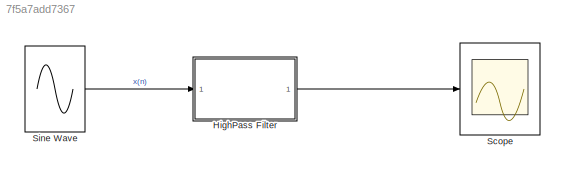
MODEL slx_7f5a7add7367
KIND model
CONFIG AbsTol = auto
CONFIG EnableMultiTasking = off
CONFIG FixedStep = auto
CONFIG MaxStep = auto
CONFIG MinStep = auto
CONFIG RelTol = 1e-3
CONFIG SampleTimeConstraint = Unconstrained
CONFIG Solver = VariableStepAuto
CONFIG SolverName = VariableStepAuto
CONFIG StartTime = 0.0
CONFIG StopTime = 10.0
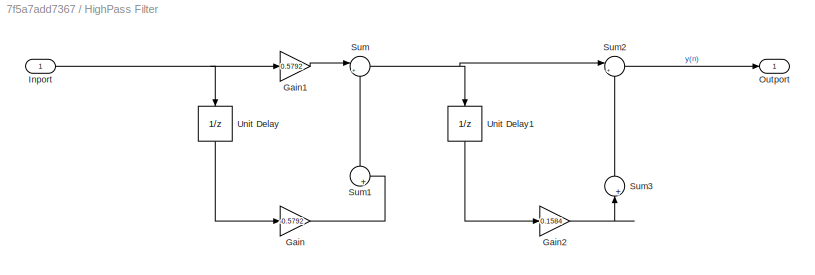
BLOCK [SubSystem] HighPass Filter
  Ports = [1, 1]
  RequestExecContextInheritance = off
BLOCK [Gain] HighPass Filter/Gain
  Gain = -0.5792
BLOCK [Gain] HighPass Filter/Gain1
  Gain = 0.5792
BLOCK [Gain] HighPass Filter/Gain2
  Gain = 0.1584
BLOCK [Inport] HighPass Filter/Inport
BLOCK [Outport] HighPass Filter/Outport
BLOCK [Sum] HighPass Filter/Sum
  Inputs = |++
  Ports = [2, 1]
BLOCK [Sum] HighPass Filter/Sum1
  Inputs = |+
  NameLocation = right
  Ports = [1, 1]
BLOCK [Sum] HighPass Filter/Sum2
  Inputs = |++
  Ports = [2, 1]
BLOCK [Sum] HighPass Filter/Sum3
  Inputs = |+
  NameLocation = right
  Ports = [1, 1]
BLOCK [UnitDelay] HighPass Filter/Unit Delay
  HasFrameUpgradeWarning = on
  NameLocation = left
  SampleTime = -1
BLOCK [UnitDelay] HighPass Filter/Unit Delay1
  HasFrameUpgradeWarning = on
  NameLocation = left
  SampleTime = -1
BLOCK [Scope] Scope
  Floating = off
  NumInputPorts = 1
  Ports = [1]
  ScopeSpecificationString = Simulink.scopes.TimeScopeBlockCfg('CurrentConfiguration', extmgr.ConfigurationSet(extmgr.Configuration('Core','General UI',true),extmgr.Configuration('Core','Source UI',true),extmgr.Configuration('Sources','WiredSimulink',true,'DataLoggingSaveFormat','Array','DataLoggingLimitDataPoints',true,'DataLoggingDecimation','1'),extmgr.Configuration('Visuals','Time Domain',true,'SerializedDisplays',{struct...<+1618ch>
BLOCK [Sin] Sine Wave
  Frequency = 100
  Ports = [0, 1]
  SampleTime = 0
LINE HighPass Filter/Gain1:1 -> HighPass Filter/Sum:1
LINE HighPass Filter/Gain2:1 -> HighPass Filter/Sum3:1
LINE HighPass Filter/Gain:1 -> HighPass Filter/Sum1:1
NET HighPass Filter/Inport:1 -> HighPass Filter/Gain1:1, HighPass Filter/Unit Delay:1
LINE HighPass Filter/Sum1:1 -> HighPass Filter/Sum:2
LINE HighPass Filter/Sum2:1 -> HighPass Filter/Outport:1
LINE HighPass Filter/Sum3:1 -> HighPass Filter/Sum2:2
NET HighPass Filter/Sum:1 -> HighPass Filter/Sum2:1, HighPass Filter/Unit Delay1:1
LINE HighPass Filter/Unit Delay1:1 -> HighPass Filter/Gain2:1
LINE HighPass Filter/Unit Delay:1 -> HighPass Filter/Gain:1
LINE HighPass Filter:1 -> Scope:1
LINE Sine Wave:1 -> HighPass Filter:1
note: NET lines group one-source signal fan-out (src -> all destinations, sorted); 1:1 wires keep LINE
